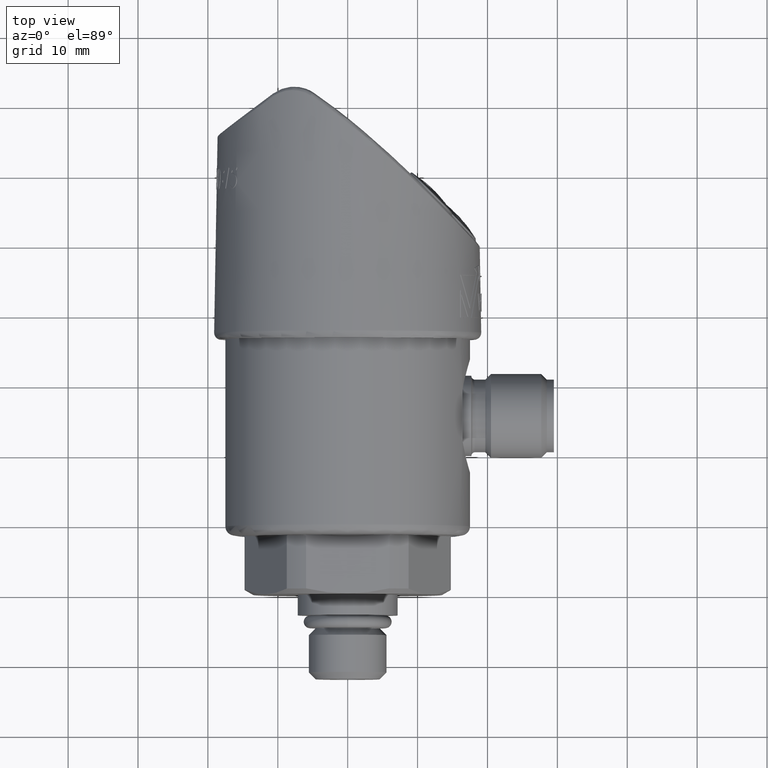
[diagram: clean part render]
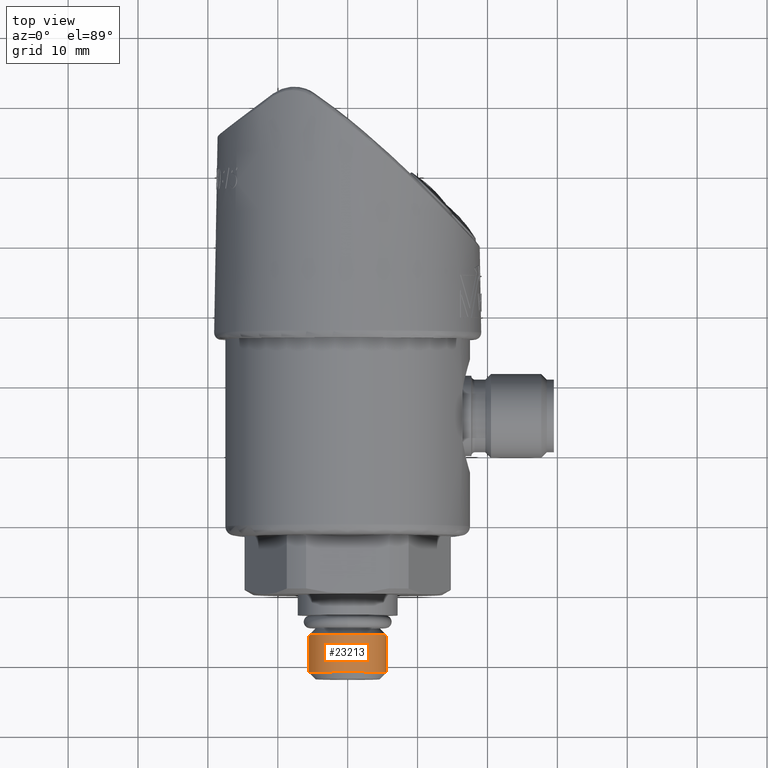
[diagram: same view with one face highlighted and labeled with its STEP entity id]
A machine part, top view. The second image highlights one B-rep face of the part: STEP entity #23213.
In plain terms, the highlighted cylindrical surface (partial cylindrical patch) has radius 5.556 mm, axis along (0, -1, 0).
Its self-contained STEP definition (entity closure, byte-faithful):
#4760=CARTESIAN_POINT('',(0.E0,-2.264173228346E-1,0.E0));
#4761=DIRECTION('',(0.E0,-1.E0,0.E0));
#4762=DIRECTION('',(1.E0,0.E0,0.E0));
#4763=AXIS2_PLACEMENT_3D('',#4760,#4761,#4762);
#4770=DIRECTION('',(0.E0,-1.E0,0.E0));
#4771=VECTOR('',#4770,2.097637795276E-1);
#4772=CARTESIAN_POINT('',(2.187401574803E-1,-2.264173228346E-1,0.E0));
#4773=LINE('',#4772,#4771);
#4774=DIRECTION('',(0.E0,-1.E0,0.E0));
#4775=VECTOR('',#4774,2.097637795276E-1);
#4776=CARTESIAN_POINT('',(-2.187401574803E-1,-2.264173228346E-1,0.E0));
#4777=LINE('',#4776,#4775);
#4791=CARTESIAN_POINT('',(0.E0,-4.361811023622E-1,0.E0));
#4792=DIRECTION('',(0.E0,1.E0,0.E0));
#4793=DIRECTION('',(-1.E0,0.E0,0.E0));
#4794=AXIS2_PLACEMENT_3D('',#4791,#4792,#4793);
#18892=CARTESIAN_POINT('',(2.187401574803E-1,-2.264173228346E-1,0.E0));
#18893=VERTEX_POINT('',#18892);
#18894=CARTESIAN_POINT('',(-2.187401574803E-1,-2.264173228346E-1,0.E0));
#18895=VERTEX_POINT('',#18894);
#18896=CARTESIAN_POINT('',(2.187401574803E-1,-4.361811023622E-1,0.E0));
#18897=VERTEX_POINT('',#18896);
#18898=CARTESIAN_POINT('',(-2.187401574803E-1,-4.361811023622E-1,0.E0));
#18899=VERTEX_POINT('',#18898);
#23199=CARTESIAN_POINT('',(0.E0,2.374015748031E-2,0.E0));
#23200=DIRECTION('',(0.E0,-1.E0,0.E0));
#23201=DIRECTION('',(-1.E0,0.E0,0.E0));
#23202=AXIS2_PLACEMENT_3D('',#23199,#23200,#23201);
#23203=CYLINDRICAL_SURFACE('',#23202,2.187401574803E-1);
#23205=ORIENTED_EDGE('',*,*,#23204,.T.);
#23207=ORIENTED_EDGE('',*,*,#23206,.F.);
#23209=ORIENTED_EDGE('',*,*,#23208,.F.);
#23210=ORIENTED_EDGE('',*,*,#23192,.F.);
#23211=EDGE_LOOP('',(#23205,#23207,#23209,#23210));
#23212=FACE_OUTER_BOUND('',#23211,.F.);
#4764=CIRCLE('',#4763,2.187401574803E-1);
#4795=CIRCLE('',#4794,2.187401574803E-1);
#23192=EDGE_CURVE('',#18893,#18895,#4764,.T.);
#23204=EDGE_CURVE('',#18893,#18897,#4773,.T.);
#23206=EDGE_CURVE('',#18899,#18897,#4795,.T.);
#23208=EDGE_CURVE('',#18895,#18899,#4777,.T.);
#23213=ADVANCED_FACE('',(#23212),#23203,.T.);